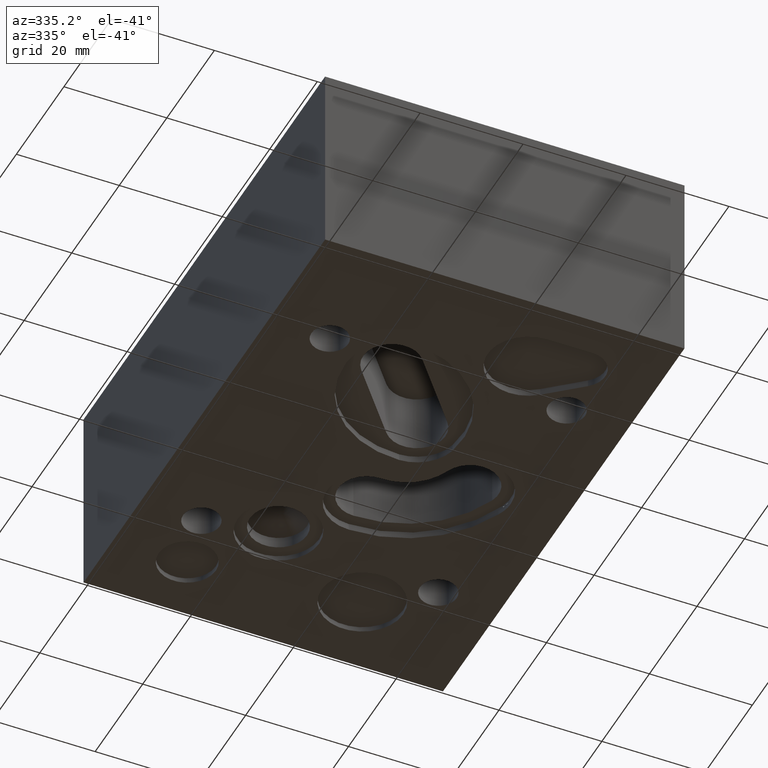
[diagram: clean part render]
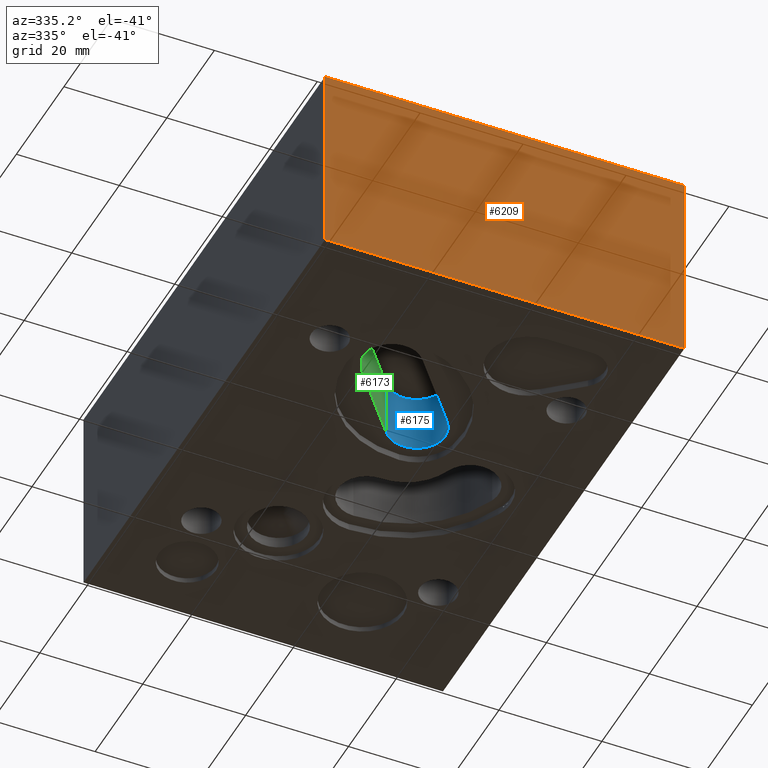
[diagram: same view with three faces highlighted in distinct colors, each labeled with its STEP entity id]
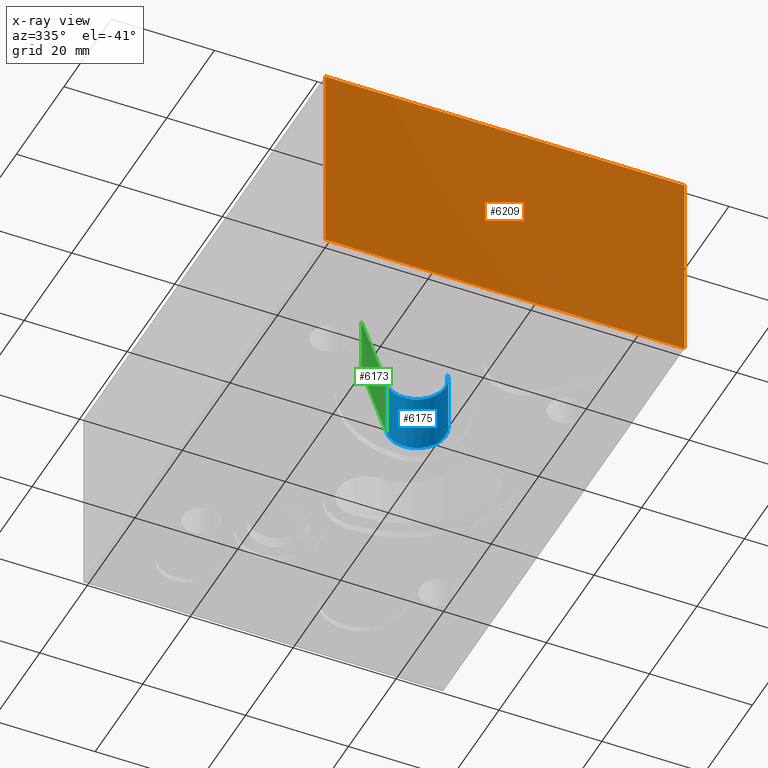
[diagram: x-ray of the same camera — body ghosted, the three highlighted faces saturated]
A machine part, auxiliary view with three faces highlighted in distinct colors.
The next image is the same camera in x-ray (body ghosted, the three faces saturated) — at least one of them is partly hidden behind the body in this view.
Their STEP definitions:

[orange] entity #6209 — the highlighted planar face has unit normal (0, -1, 0).
#548=FACE_OUTER_BOUND('',#911,.T.);
#911=EDGE_LOOP('',(#5652,#5653,#5654,#5655));
#1546=LINE('',#10726,#2212);
#1579=LINE('',#10899,#2245);
#1581=LINE('',#10904,#2247);
#1582=LINE('',#10906,#2248);
#2212=VECTOR('',#7622,2.75);
#2245=VECTOR('',#7817,1.5);
#2247=VECTOR('',#7823,1.5);
#2248=VECTOR('',#7826,2.75);
#2941=VERTEX_POINT('',#10724);
#2942=VERTEX_POINT('',#10725);
#3001=VERTEX_POINT('',#10897);
#3002=VERTEX_POINT('',#10902);
#3802=EDGE_CURVE('',#2941,#2942,#1546,.T.);
#3886=EDGE_CURVE('',#2941,#3001,#1579,.T.);
#3888=EDGE_CURVE('',#2942,#3002,#1581,.T.);
#3889=EDGE_CURVE('',#3002,#3001,#1582,.T.);
#5652=ORIENTED_EDGE('',*,*,#3889,.T.);
#5653=ORIENTED_EDGE('',*,*,#3886,.F.);
#5654=ORIENTED_EDGE('',*,*,#3802,.T.);
#5655=ORIENTED_EDGE('',*,*,#3888,.T.);
#5883=PLANE('',#6539);
#6209=ADVANCED_FACE('',(#548),#5883,.T.);
#6539=AXIS2_PLACEMENT_3D('',#10905,#7824,#7825);
#7622=DIRECTION('',(1.,0.,0.));
#7817=DIRECTION('',(0.,0.,1.));
#7823=DIRECTION('',(0.,0.,1.));
#7824=DIRECTION('center_axis',(0.,-1.,0.));
#7825=DIRECTION('ref_axis',(0.,0.,-1.));
#7826=DIRECTION('',(-1.,0.,0.));
#10724=CARTESIAN_POINT('',(0.,0.,0.));
#10725=CARTESIAN_POINT('',(2.75,0.,0.));
#10726=CARTESIAN_POINT('',(0.,0.,0.));
#10897=CARTESIAN_POINT('',(0.,0.,1.5));
#10899=CARTESIAN_POINT('',(0.,0.,0.));
#10902=CARTESIAN_POINT('',(2.75,0.,1.5));
#10904=CARTESIAN_POINT('',(2.75,0.,0.));
#10905=CARTESIAN_POINT('Origin',(2.75,0.,0.));
#10906=CARTESIAN_POINT('',(2.75,0.,1.5));

[blue] entity #6175 — the highlighted cylindrical surface (edge-blend (fillet) strip) has radius 5.5626 mm, axis along (0, 0, -1).
#25=CIRCLE('',#6447,0.219);
#27=CIRCLE('',#6453,0.219);
#84=CYLINDRICAL_SURFACE('',#6454,0.219);
#514=FACE_OUTER_BOUND('',#865,.T.);
#865=EDGE_LOOP('',(#5469,#5470,#5471,#5472));
#1542=LINE('',#10711,#2208);
#1544=LINE('',#10718,#2210);
#2208=VECTOR('',#7604,0.448);
#2210=VECTOR('',#7612,0.448);
#2934=VERTEX_POINT('',#10699);
#2936=VERTEX_POINT('',#10703);
#2938=VERTEX_POINT('',#10709);
#2940=VERTEX_POINT('',#10717);
#3793=EDGE_CURVE('',#2934,#2936,#25,.T.);
#3796=EDGE_CURVE('',#2936,#2938,#1542,.T.);
#3799=EDGE_CURVE('',#2934,#2940,#1544,.T.);
#3801=EDGE_CURVE('',#2940,#2938,#27,.T.);
#5469=ORIENTED_EDGE('',*,*,#3793,.T.);
#5470=ORIENTED_EDGE('',*,*,#3796,.T.);
#5471=ORIENTED_EDGE('',*,*,#3801,.F.);
#5472=ORIENTED_EDGE('',*,*,#3799,.F.);
#6175=ADVANCED_FACE('',(#514),#84,.F.);
#6447=AXIS2_PLACEMENT_3D('',#10705,#7598,#7599);
#6453=AXIS2_PLACEMENT_3D('',#10721,#7616,#7617);
#6454=AXIS2_PLACEMENT_3D('',#10722,#7618,#7619);
#7598=DIRECTION('center_axis',(0.,0.,-1.));
#7599=DIRECTION('ref_axis',(1.,0.,0.));
#7604=DIRECTION('',(0.,0.,1.));
#7612=DIRECTION('',(0.,0.,1.));
#7616=DIRECTION('center_axis',(0.,0.,-1.));
#7617=DIRECTION('ref_axis',(-1.,0.,0.));
#7618=DIRECTION('center_axis',(0.,0.,-1.));
#7619=DIRECTION('ref_axis',(1.,0.,0.));
#10699=CARTESIAN_POINT('',(1.26980753904229,1.73310366836059,0.052));
#10703=CARTESIAN_POINT('',(1.60769246095771,1.45439633163941,0.052));
#10705=CARTESIAN_POINT('Origin',(1.43875,1.59375,0.052));
#10709=CARTESIAN_POINT('',(1.60769246095771,1.45439633163941,0.5));
#10711=CARTESIAN_POINT('',(1.60769246095771,1.45439633163941,0.052));
#10717=CARTESIAN_POINT('',(1.26980753904229,1.73310366836059,0.5));
#10718=CARTESIAN_POINT('',(1.26980753904229,1.73310366836059,0.052));
#10721=CARTESIAN_POINT('Origin',(1.43875,1.59375,0.5));
#10722=CARTESIAN_POINT('Origin',(1.43875,1.59375,0.02));

[green] entity #6173 — the highlighted planar face has unit normal (-0.7714, 0.6363, 0).
#512=FACE_OUTER_BOUND('',#863,.T.);
#863=EDGE_LOOP('',(#5461,#5462,#5463,#5464));
#1538=LINE('',#10700,#2204);
#1543=LINE('',#10714,#2209);
#1544=LINE('',#10718,#2210);
#1545=LINE('',#10719,#2211);
#2204=VECTOR('',#7594,0.688334947536445);
#2209=VECTOR('',#7607,0.448);
#2210=VECTOR('',#7612,0.448);
#2211=VECTOR('',#7613,0.688334947536445);
#2933=VERTEX_POINT('',#10698);
#2934=VERTEX_POINT('',#10699);
#2939=VERTEX_POINT('',#10713);
#2940=VERTEX_POINT('',#10717);
#3790=EDGE_CURVE('',#2933,#2934,#1538,.T.);
#3797=EDGE_CURVE('',#2933,#2939,#1543,.T.);
#3799=EDGE_CURVE('',#2934,#2940,#1544,.T.);
#3800=EDGE_CURVE('',#2939,#2940,#1545,.T.);
#5461=ORIENTED_EDGE('',*,*,#3790,.T.);
#5462=ORIENTED_EDGE('',*,*,#3799,.T.);
#5463=ORIENTED_EDGE('',*,*,#3800,.F.);
#5464=ORIENTED_EDGE('',*,*,#3797,.F.);
#5868=PLANE('',#6451);
#6173=ADVANCED_FACE('',(#512),#5868,.F.);
#6451=AXIS2_PLACEMENT_3D('',#10716,#7610,#7611);
#7594=DIRECTION('',(0.636318120368005,0.771426762363952,0.));
#7607=DIRECTION('',(0.,0.,1.));
#7610=DIRECTION('center_axis',(-0.771426762363952,0.636318120368005,0.));
#7611=DIRECTION('ref_axis',(0.,0.,1.));
#7612=DIRECTION('',(0.,0.,1.));
#7613=DIRECTION('',(0.636318120368005,0.771426762363952,0.));
#10698=CARTESIAN_POINT('',(0.831807539042294,1.20210366836059,0.052));
#10699=CARTESIAN_POINT('',(1.26980753904229,1.73310366836059,0.052));
#10700=CARTESIAN_POINT('',(0.831807539042294,1.20210366836059,0.052));
#10713=CARTESIAN_POINT('',(0.831807539042294,1.20210366836059,0.5));
#10714=CARTESIAN_POINT('',(0.831807539042294,1.20210366836059,0.052));
#10716=CARTESIAN_POINT('Origin',(0.831807539042294,1.20210366836059,0.));
#10717=CARTESIAN_POINT('',(1.26980753904229,1.73310366836059,0.5));
#10718=CARTESIAN_POINT('',(1.26980753904229,1.73310366836059,0.052));
#10719=CARTESIAN_POINT('',(0.831807539042294,1.20210366836059,0.5));